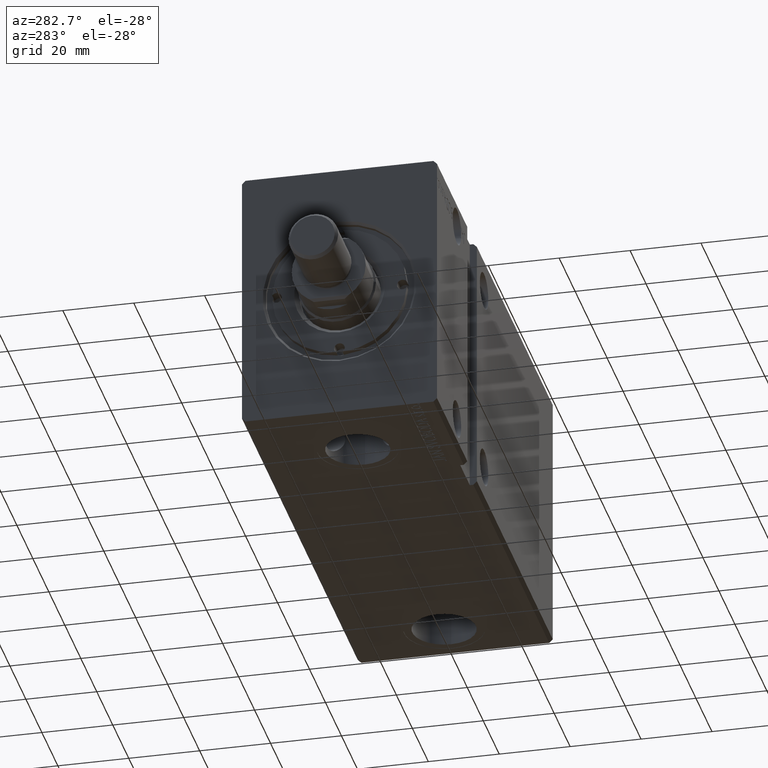
[diagram: clean part render]
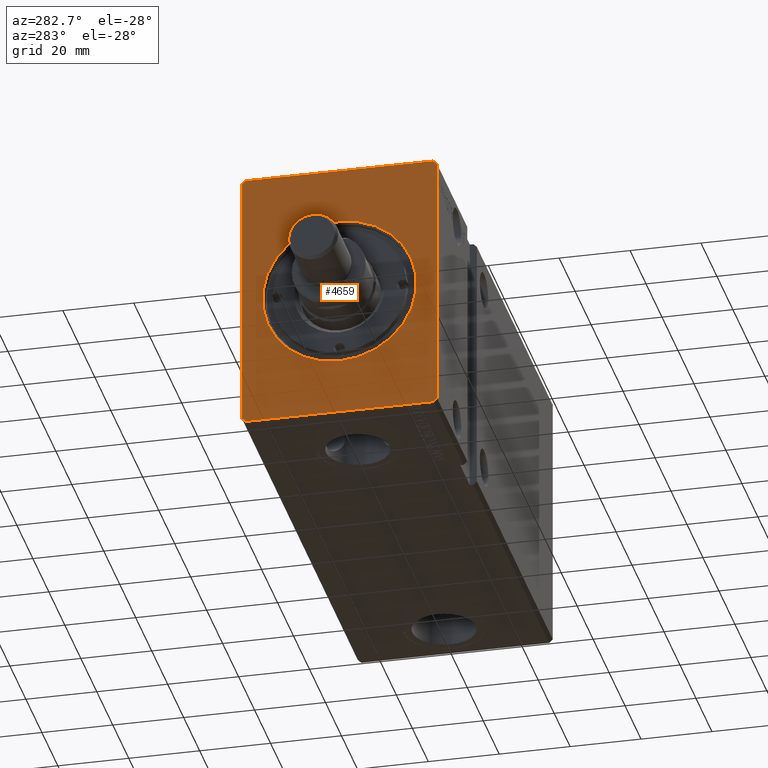
[diagram: same view with one face highlighted and labeled with its STEP entity id]
A machine part, auxiliary view. The second image highlights one B-rep face of the part: STEP entity #4659.
In plain terms, the highlighted planar face has unit normal (1, 0, 0).
Its self-contained STEP definition (entity closure, byte-faithful):
#358 = DIRECTION ( 'NONE',  ( 1.000000000000000000, 0.000000000000000000, 0.000000000000000000 ) ) ;
#752 = PLANE ( 'NONE',  #29540 ) ;
#883 = DIRECTION ( 'NONE',  ( 0.000000000000000000, 1.000000000000000000, 0.000000000000000000 ) ) ;
#1079 = VERTEX_POINT ( 'NONE', #27448 ) ;
#3061 = ORIENTED_EDGE ( 'NONE', *, *, #5824, .F. ) ;
#3101 = CARTESIAN_POINT ( 'NONE',  ( 0.000000000000000000, -27.50000000000000355, -36.49999999999998579 ) ) ;
#3410 = EDGE_CURVE ( 'NONE', #5795, #17983, #21470, .T. ) ;
#3641 = DIRECTION ( 'NONE',  ( 0.000000000000000000, 0.000000000000000000, -1.000000000000000000 ) ) ;
#4068 = DIRECTION ( 'NONE',  ( 0.000000000000000000, 0.7071067811865474617, 0.7071067811865474617 ) ) ;
#4106 = LINE ( 'NONE', #38256, #24227 ) ;
#4133 = EDGE_CURVE ( 'NONE', #1079, #30978, #25643, .T. ) ;
#4456 = CARTESIAN_POINT ( 'NONE',  ( 0.000000000000000000, 0.000000000000000000, 0.000000000000000000 ) ) ;
#4633 = EDGE_CURVE ( 'NONE', #17306, #18447, #34494, .T. ) ;
#4659 = ADVANCED_FACE ( 'NONE', ( #37341, #36951 ), #752, .F. ) ;
#5795 = VERTEX_POINT ( 'NONE', #18095 ) ;
#5824 = EDGE_CURVE ( 'NONE', #31780, #5795, #39941, .T. ) ;
#5954 = EDGE_CURVE ( 'NONE', #36814, #34357, #32017, .T. ) ;
#6962 = AXIS2_PLACEMENT_3D ( 'NONE', #4456, #22207, #3641 ) ;
#9269 = CARTESIAN_POINT ( 'NONE',  ( 0.000000000000000000, 26.50000000000000355, 37.50000000000000711 ) ) ;
#10408 = DIRECTION ( 'NONE',  ( 0.000000000000000000, -4.752667057470704875E-17, 1.000000000000000000 ) ) ;
#10614 = CARTESIAN_POINT ( 'NONE',  ( 0.000000000000000000, 27.50000000000000711, -36.49999999999999289 ) ) ;
#10879 = CARTESIAN_POINT ( 'NONE',  ( 0.000000000000000000, -26.50000000000000711, 37.50000000000000711 ) ) ;
#12188 = CARTESIAN_POINT ( 'NONE',  ( 0.000000000000000000, 0.000000000000000000, 0.000000000000000000 ) ) ;
#12720 = VECTOR ( 'NONE', #883, 1000.000000000000000 ) ;
#12777 = CIRCLE ( 'NONE', #6962, 21.70000000000000995 ) ;
#13471 = CARTESIAN_POINT ( 'NONE',  ( 0.000000000000000000, 27.50000000000000711, -36.49999999999999289 ) ) ;
#13739 = ORIENTED_EDGE ( 'NONE', *, *, #36698, .T. ) ;
#15405 = DIRECTION ( 'NONE',  ( 0.000000000000000000, 0.7071067811865451302, -0.7071067811865500152 ) ) ;
#15701 = CARTESIAN_POINT ( 'NONE',  ( 0.000000000000000000, 0.000000000000000000, 0.000000000000000000 ) ) ;
#15895 = VERTEX_POINT ( 'NONE', #24923 ) ;
#16286 = DIRECTION ( 'NONE',  ( 0.000000000000000000, -1.000000000000000000, 0.000000000000000000 ) ) ;
#17306 = VERTEX_POINT ( 'NONE', #32720 ) ;
#17897 = ORIENTED_EDGE ( 'NONE', *, *, #5954, .F. ) ;
#17983 = VERTEX_POINT ( 'NONE', #39640 ) ;
#18095 = CARTESIAN_POINT ( 'NONE',  ( 0.000000000000000000, -27.50000000000000355, -36.49999999999998579 ) ) ;
#18447 = VERTEX_POINT ( 'NONE', #10879 ) ;
#19178 = AXIS2_PLACEMENT_3D ( 'NONE', #12188, #36051, #36440 ) ;
#19391 = LINE ( 'NONE', #25086, #28946 ) ;
#19713 = LINE ( 'NONE', #35497, #25455 ) ;
#19924 = CARTESIAN_POINT ( 'NONE',  ( 0.000000000000000000, -27.50000000000000711, 36.50000000000000711 ) ) ;
#21131 = DIRECTION ( 'NONE',  ( 0.000000000000000000, 4.752667057470705491E-17, -1.000000000000000000 ) ) ;
#21281 = EDGE_LOOP ( 'NONE', ( #37673, #17897, #32581, #24087, #25087, #3061, #35811, #35321 ) ) ;
#21470 = LINE ( 'NONE', #3101, #32067 ) ;
#22207 = DIRECTION ( 'NONE',  ( 1.000000000000000000, 0.000000000000000000, 0.000000000000000000 ) ) ;
#23264 = EDGE_CURVE ( 'NONE', #34357, #17306, #19713, .T. ) ;
#23738 = VECTOR ( 'NONE', #21131, 1000.000000000000000 ) ;
#24087 = ORIENTED_EDGE ( 'NONE', *, *, #33877, .F. ) ;
#24227 = VECTOR ( 'NONE', #35614, 1000.000000000000114 ) ;
#24923 = CARTESIAN_POINT ( 'NONE',  ( 0.000000000000000000, 26.50000000000000711, -37.49999999999999289 ) ) ;
#25086 = CARTESIAN_POINT ( 'NONE',  ( 0.000000000000000000, 26.50000000000000711, -37.49999999999999289 ) ) ;
#25087 = ORIENTED_EDGE ( 'NONE', *, *, #3410, .F. ) ;
#25455 = VECTOR ( 'NONE', #29628, 1000.000000000000114 ) ;
#25534 = CARTESIAN_POINT ( 'NONE',  ( 0.000000000000000000, -26.50000000000000355, -37.49999999999999289 ) ) ;
#25643 = CIRCLE ( 'NONE', #19178, 21.70000000000000995 ) ;
#25975 = EDGE_CURVE ( 'NONE', #18447, #31780, #4106, .T. ) ;
#27448 = CARTESIAN_POINT ( 'NONE',  ( 0.000000000000000000, 2.657483554149757921E-15, -21.70000000000000995 ) ) ;
#28236 = DIRECTION ( 'NONE',  ( 0.000000000000000000, 0.000000000000000000, -1.000000000000000000 ) ) ;
#28470 = CARTESIAN_POINT ( 'NONE',  ( 0.000000000000000000, 27.50000000000000355, 36.50000000000000711 ) ) ;
#28563 = LINE ( 'NONE', #25534, #12720 ) ;
#28946 = VECTOR ( 'NONE', #4068, 1000.000000000000114 ) ;
#29540 = AXIS2_PLACEMENT_3D ( 'NONE', #15701, #358, #28236 ) ;
#29628 = DIRECTION ( 'NONE',  ( 0.000000000000000000, -0.7071067811865474617, 0.7071067811865474617 ) ) ;
#29834 = ORIENTED_EDGE ( 'NONE', *, *, #4133, .T. ) ;
#30978 = VERTEX_POINT ( 'NONE', #39701 ) ;
#31451 = VECTOR ( 'NONE', #16286, 1000.000000000000000 ) ;
#31780 = VERTEX_POINT ( 'NONE', #19924 ) ;
#32017 = LINE ( 'NONE', #10614, #37929 ) ;
#32067 = VECTOR ( 'NONE', #15405, 1000.000000000000114 ) ;
#32581 = ORIENTED_EDGE ( 'NONE', *, *, #38468, .F. ) ;
#32720 = CARTESIAN_POINT ( 'NONE',  ( 0.000000000000000000, 26.50000000000000355, 37.50000000000000711 ) ) ;
#33877 = EDGE_CURVE ( 'NONE', #17983, #15895, #28563, .T. ) ;
#34357 = VERTEX_POINT ( 'NONE', #28470 ) ;
#34494 = LINE ( 'NONE', #9269, #31451 ) ;
#35321 = ORIENTED_EDGE ( 'NONE', *, *, #4633, .F. ) ;
#35497 = CARTESIAN_POINT ( 'NONE',  ( 0.000000000000000000, 27.50000000000000355, 36.50000000000000711 ) ) ;
#35614 = DIRECTION ( 'NONE',  ( 0.000000000000000000, -0.7071067811865474617, -0.7071067811865474617 ) ) ;
#35811 = ORIENTED_EDGE ( 'NONE', *, *, #25975, .F. ) ;
#36051 = DIRECTION ( 'NONE',  ( 1.000000000000000000, 0.000000000000000000, 0.000000000000000000 ) ) ;
#36440 = DIRECTION ( 'NONE',  ( 0.000000000000000000, 0.000000000000000000, -1.000000000000000000 ) ) ;
#36698 = EDGE_CURVE ( 'NONE', #30978, #1079, #12777, .T. ) ;
#36814 = VERTEX_POINT ( 'NONE', #13471 ) ;
#36900 = CARTESIAN_POINT ( 'NONE',  ( 0.000000000000000000, -27.50000000000000711, 36.50000000000000711 ) ) ;
#36951 = FACE_OUTER_BOUND ( 'NONE', #21281, .T. ) ;
#37341 = FACE_BOUND ( 'NONE', #37897, .T. ) ;
#37673 = ORIENTED_EDGE ( 'NONE', *, *, #23264, .F. ) ;
#37897 = EDGE_LOOP ( 'NONE', ( #13739, #29834 ) ) ;
#37929 = VECTOR ( 'NONE', #10408, 1000.000000000000000 ) ;
#38256 = CARTESIAN_POINT ( 'NONE',  ( 0.000000000000000000, -26.50000000000000711, 37.50000000000000711 ) ) ;
#38468 = EDGE_CURVE ( 'NONE', #15895, #36814, #19391, .T. ) ;
#39640 = CARTESIAN_POINT ( 'NONE',  ( 0.000000000000000000, -26.50000000000000355, -37.49999999999999289 ) ) ;
#39701 = CARTESIAN_POINT ( 'NONE',  ( 0.000000000000000000, 0.000000000000000000, 21.70000000000000995 ) ) ;
#39941 = LINE ( 'NONE', #36900, #23738 ) ;